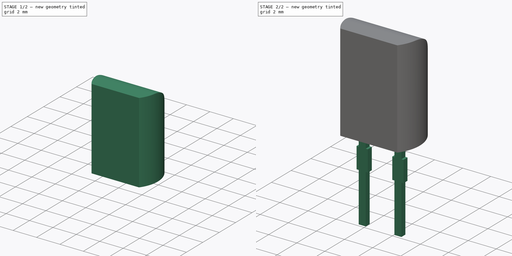
[diagram: build sequence overview — one tinted view per stage of 2, left to right]
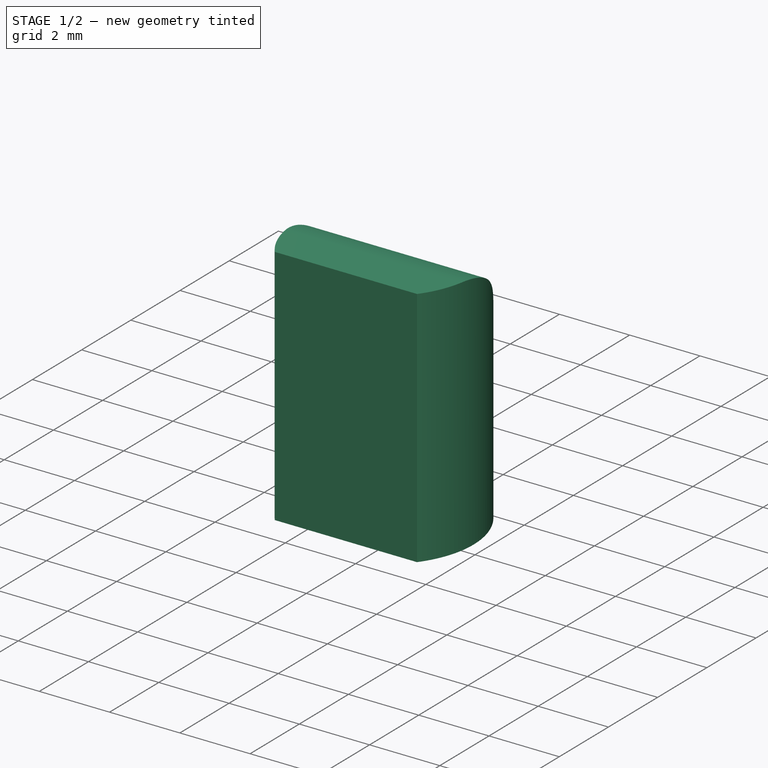
[diagram: stage 1 of 2 — iso view after this stage's code; geometry added in this stage tinted green]
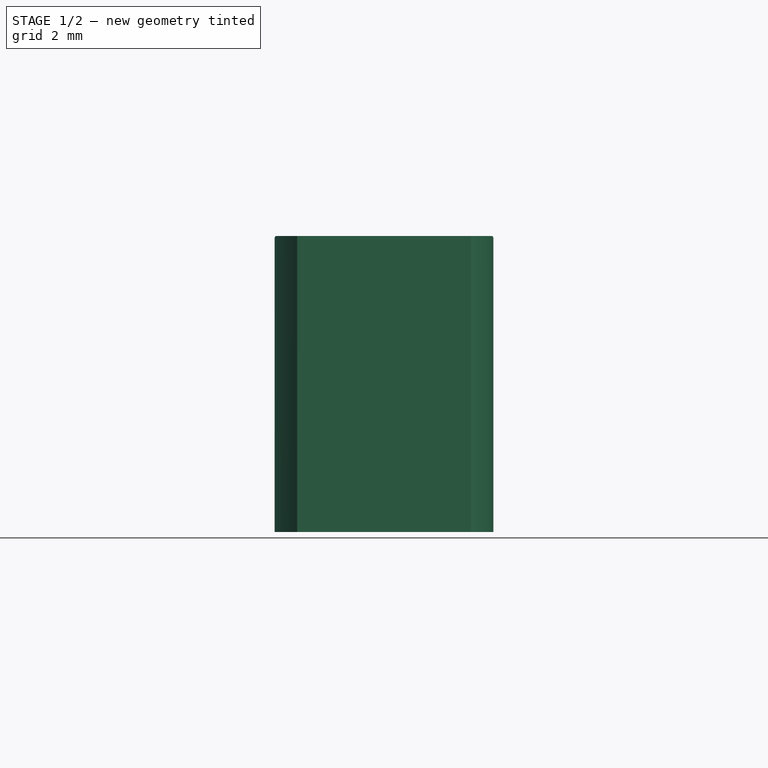
[diagram: stage 1 of 2 — front view after this stage's code; geometry added in this stage tinted green]
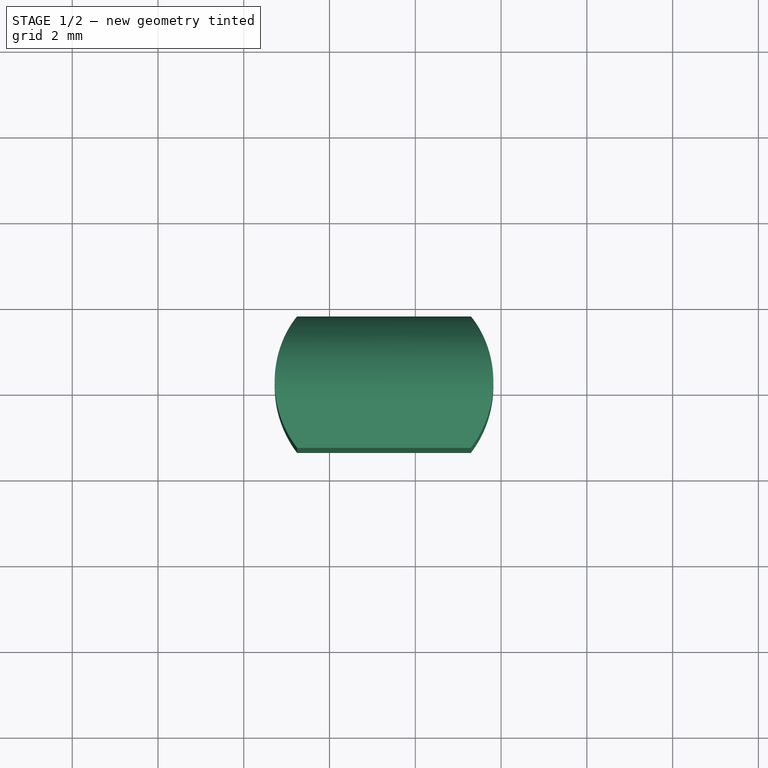
[diagram: stage 1 of 2 — top view after this stage's code; geometry added in this stage tinted green]
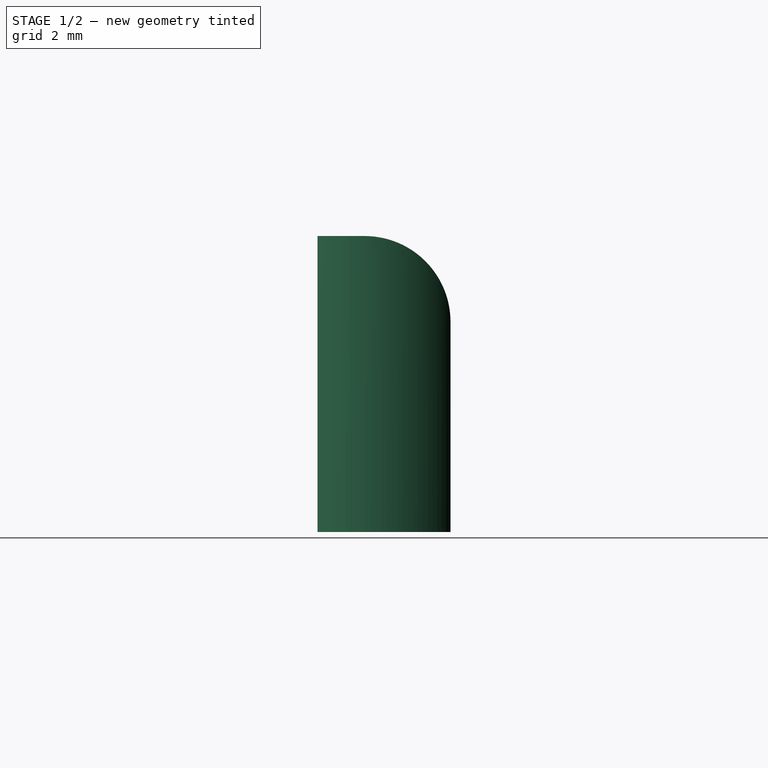
[diagram: stage 1 of 2 — right view after this stage's code; geometry added in this stage tinted green]
FCSTD DOCUMENT  (FreeCAD 0.16R6712 (Git))
Label: Osram_SFH225
License: All rights reserved
LicenseURL: http://en.wikipedia.org/wiki/All_rights_reserved
objects: Sketcher::SketchObject×2, PartDesign::Pad×2, PartDesign::Fillet×1, Part::MultiFuse×1
note: 8 computed .brp shape members not serialized (recipe doc carries the construction recipe); baked Part::Feature solids carry a one-line shape summary decoded from their .brp

FEATURE [Sketcher::SketchObject] Sketch
  Placement = pos=(0,0,3) rot=(0,0,1;0rad)
  expr: Constraints[3] = 5.1 / 2
  sketch-geometry (5):
    g0: LineSegment StartX=-0.754846 StartY=-1.35 StartZ=0 EndX=3.29485 EndY=-1.35 EndZ=0
    g1: ArcOfCircle CenterX=1.27 CenterY=0.2 CenterZ=0 NormalX=0 NormalY=0 NormalZ=1 Radius=2.55 StartAngle=5.62984 EndAngle=6.93653
    g2: LineSegment StartX=3.29485 StartY=1.75 StartZ=0 EndX=-0.754846 EndY=1.75 EndZ=0
    g3: ArcOfCircle CenterX=1.27 CenterY=0.2 CenterZ=0 NormalX=0 NormalY=0 NormalZ=1 Radius=2.55 StartAngle=2.48825 EndAngle=3.79493
    g4: LineSegment [constr] StartX=1.27 StartY=1.75 StartZ=0 EndX=1.27 EndY=-1.35 EndZ=0
  constraints (17):
    c: Horizontal(g0)
    c: Coincident(g3,g0)
    c: Coincident(g1,g0)
    c: Radius(g1) = 2.55
    c: DistanceX(g-1,g1) = 1.27
    c: Horizontal(g2)
    c: Equal(g1,g3)
    c: Coincident(g1,g2)
    c: Coincident(g3,g2)
    c: Coincident(g1,g3)
    c: DistanceY(g0,g1) = 3.1
    c: PointOnObject(g4,g2)
    c: PointOnObject(g4,g0)
    c: Vertical(g4)
    c: Symmetric(g0,g0,g4)
    c: DistanceY(g0,g-1) = 1.35
    c: Symmetric(g4,g4,g1)
FEATURE [PartDesign::Pad] Pad
  Length = 6.9
  Length2 = 100
  Placement = pos=(0,0,3) rot=(0,0,1;0rad)
  Sketch = -> Sketch
  Type = 0
FEATURE [PartDesign::Fillet] Fillet
  Base = -> Pad [Edge10]
  Placement = pos=(0,0,3) rot=(0,0,1;0rad)
  Radius = 2
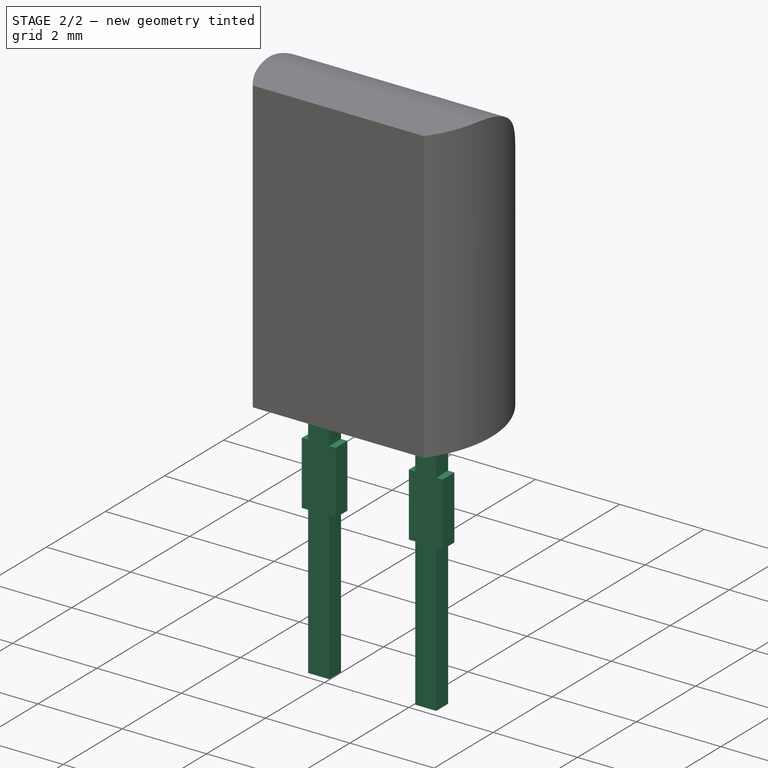
[diagram: stage 2 of 2 — iso view after this stage's code; geometry added in this stage tinted green]
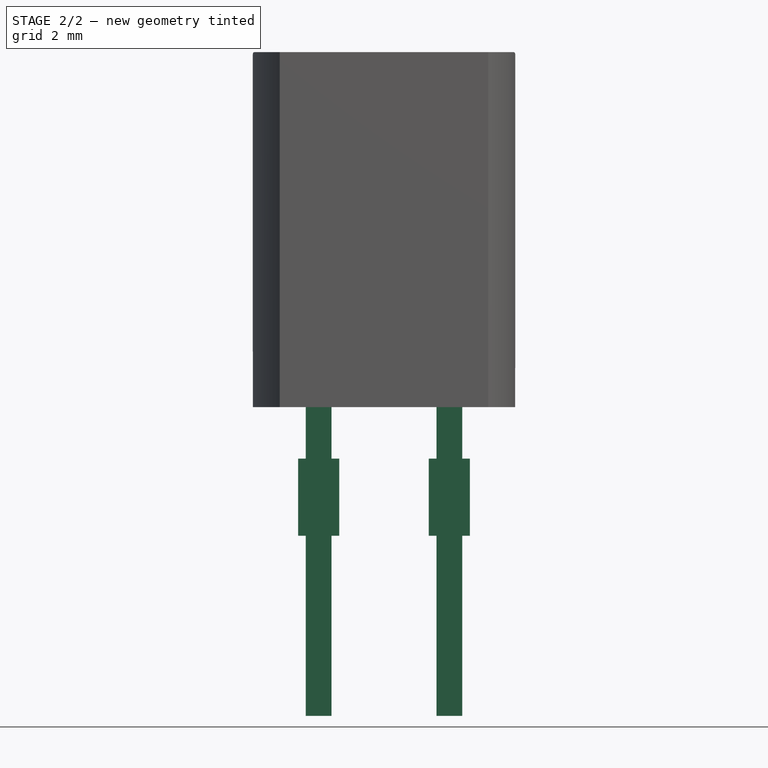
[diagram: stage 2 of 2 — front view after this stage's code; geometry added in this stage tinted green]
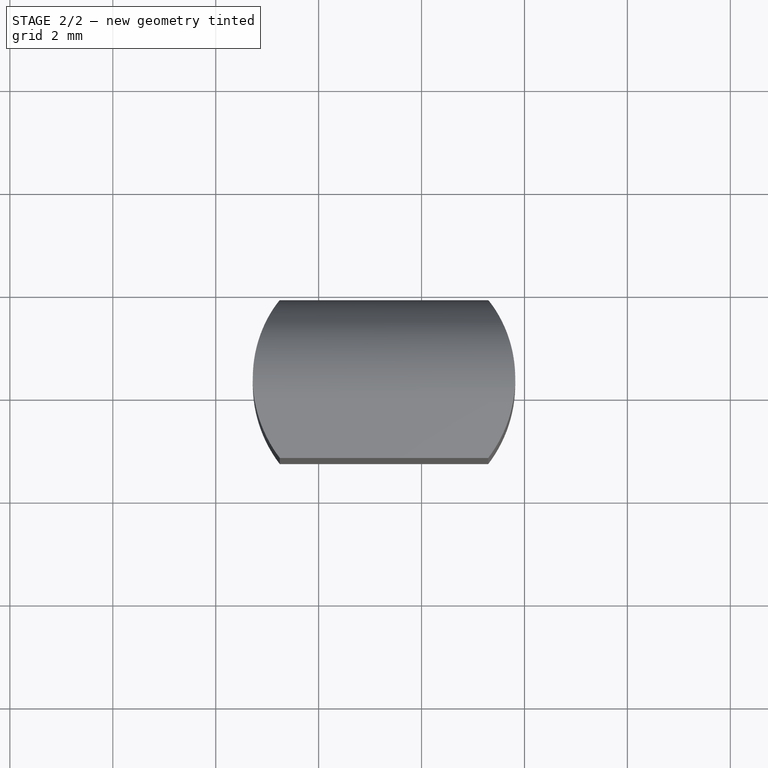
[diagram: stage 2 of 2 — top view after this stage's code; geometry added in this stage tinted green]
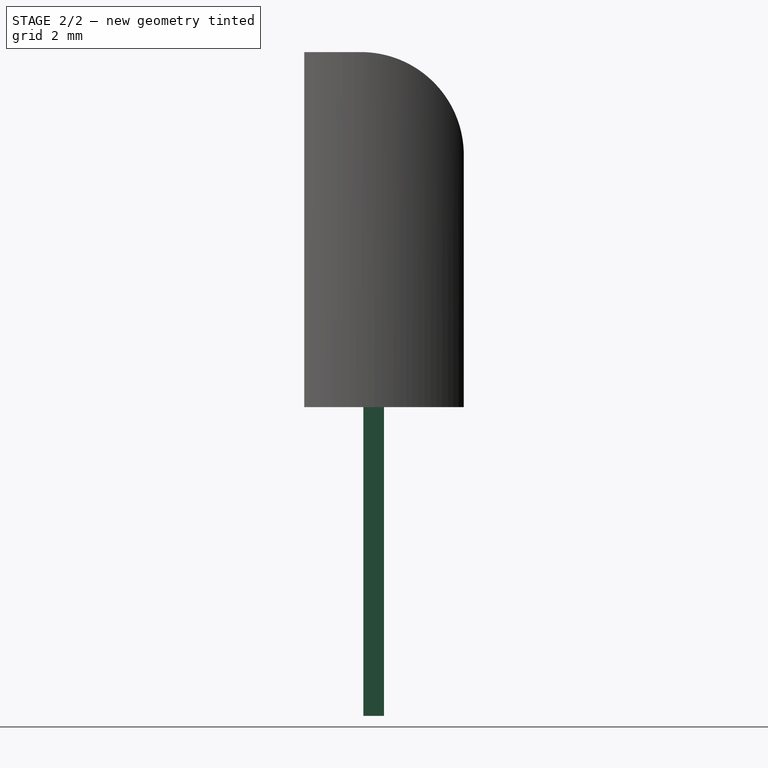
[diagram: stage 2 of 2 — right view after this stage's code; geometry added in this stage tinted green]
FEATURE [Sketcher::SketchObject] Sketch002
  Placement = pos=(0,0,0) rot=(1,0,0;1.5708rad)
  sketch-geometry (31):
    g0: LineSegment StartX=-0.25 StartY=3 StartZ=0 EndX=0.25 EndY=3 EndZ=0
    g1: LineSegment StartX=0.25 StartY=3 StartZ=0 EndX=0.25 EndY=2 EndZ=0
    g2: LineSegment [constr] StartX=0.25 StartY=2 StartZ=0 EndX=-0.25 EndY=2 EndZ=0
    g3: LineSegment StartX=-0.25 StartY=2 StartZ=0 EndX=-0.25 EndY=3 EndZ=0
    g4: LineSegment [constr] StartX=-0.25 StartY=0.5 StartZ=0 EndX=0.25 EndY=0.5 EndZ=0
    g5: LineSegment StartX=0.25 StartY=0.5 StartZ=0 EndX=0.25 EndY=-3 EndZ=0
    g6: LineSegment StartX=0.25 StartY=-3 StartZ=0 EndX=-0.25 EndY=-3 EndZ=0
    g7: LineSegment StartX=-0.25 StartY=-3 StartZ=0 EndX=-0.25 EndY=0.5 EndZ=0
    g8: LineSegment StartX=0.4 StartY=2 StartZ=0 EndX=0.4 EndY=0.5 EndZ=0
    g9: LineSegment StartX=-0.4 StartY=0.5 StartZ=0 EndX=-0.4 EndY=2 EndZ=0
    g10: LineSegment StartX=-0.4 StartY=2 StartZ=0 EndX=-0.25 EndY=2 EndZ=0
    g11: LineSegment StartX=0.25 StartY=2 StartZ=0 EndX=0.4 EndY=2 EndZ=0
    g12: LineSegment StartX=0.4 StartY=0.5 StartZ=0 EndX=0.25 EndY=0.5 EndZ=0
    g13: LineSegment StartX=-0.4 StartY=0.5 StartZ=0 EndX=-0.25 EndY=0.5 EndZ=0
    g14: GeomPoint [constr] X=0 Y=-3 Z=0
    g15: LineSegment StartX=2.29 StartY=3 StartZ=0 EndX=2.79 EndY=3 EndZ=0
    g16: LineSegment StartX=2.79 StartY=3 StartZ=0 EndX=2.79 EndY=2 EndZ=0
    g17: LineSegment [constr] StartX=2.79 StartY=2 StartZ=0 EndX=2.29 EndY=2 EndZ=0
    g18: LineSegment StartX=2.29 StartY=2 StartZ=0 EndX=2.29 EndY=3 EndZ=0
    g19: LineSegment [constr] StartX=2.29 StartY=0.5 StartZ=0 EndX=2.79 EndY=0.5 EndZ=0
    g20: LineSegment StartX=2.79 StartY=0.5 StartZ=0 EndX=2.79 EndY=-3 EndZ=0
    g21: LineSegment StartX=2.79 StartY=-3 StartZ=0 EndX=2.29 EndY=-3 EndZ=0
    g22: LineSegment StartX=2.29 StartY=-3 StartZ=0 EndX=2.29 EndY=0.5 EndZ=0
    g23: LineSegment StartX=2.94 StartY=2 StartZ=0 EndX=2.94 EndY=0.5 EndZ=0
    g24: LineSegment StartX=2.14 StartY=0.5 StartZ=0 EndX=2.14 EndY=2 EndZ=0
    g25: LineSegment StartX=2.14 StartY=2 StartZ=0 EndX=2.29 EndY=2 EndZ=0
    g26: LineSegment StartX=2.79 StartY=2 StartZ=0 EndX=2.94 EndY=2 EndZ=0
    g27: LineSegment StartX=2.94 StartY=0.5 StartZ=0 EndX=2.79 EndY=0.5 EndZ=0
    g28: LineSegment StartX=2.14 StartY=0.5 StartZ=0 EndX=2.29 EndY=0.5 EndZ=0
    g29: GeomPoint [constr] X=2.54 Y=-3 Z=0
    g30: LineSegment [constr] StartX=0.25 StartY=-3 StartZ=0 EndX=2.29 EndY=-3 EndZ=0
  constraints (87):
    c: Coincident(g0,g1)
    c: Coincident(g1,g2)
    c: Coincident(g2,g3)
    c: Coincident(g3,g0)
    c: Horizontal(g0)
    c: Horizontal(g2)
    c: Vertical(g1)
    c: Vertical(g3)
    c: Coincident(g4,g5)
    c: Coincident(g5,g6)
    c: Coincident(g6,g7)
    c: Coincident(g7,g4)
    c: Horizontal(g4)
    c: Horizontal(g6)
    c: Vertical(g5)
    c: Vertical(g7)
    c: Vertical(g8)
    c: Vertical(g9)
    c: Equal(g4,g2)
    c: Coincident(g10,g9)
    c: Coincident(g10,g2)
    c: Coincident(g11,g1)
    c: Coincident(g11,g8)
    c: Horizontal(g11)
    c: Coincident(g12,g8)
    c: Coincident(g12,g4)
    c: Coincident(g13,g9)
    c: Horizontal(g13)
    c: Horizontal(g10)
    c: Coincident(g4,g13)
    c: Horizontal(g12)
    c: Equal(g12,g13)
    c: Equal(g10,g11)
    c: Equal(g11,g12)
    c: PointOnObject(g14,g-2)
    c: Symmetric(g6,g6,g14)
    c: DistanceY(g14,g-1) = 3
    c: DistanceY(g-1,g0) = 3
    c: DistanceX(g6,g6) = 0.5
    c: DistanceX(g9,g8) = 0.8
    c: DistanceY(g8,g8) = 1.5
    c: DistanceY(g1,g1) = 1
    c: Coincident(g15,g16)
    c: Coincident(g16,g17)
    c: Coincident(g17,g18)
    c: Coincident(g18,g15)
    c: Horizontal(g15)
    c: Vertical(g16)
    c: Vertical(g18)
    c: Coincident(g19,g20)
    c: Coincident(g20,g21)
    c: Coincident(g21,g22)
    c: Coincident(g22,g19)
    c: Horizontal(g19)
    c: Horizontal(g21)
    c: Vertical(g20)
    c: Vertical(g22)
    c: Vertical(g23)
    c: Vertical(g24)
    c: Equal(g19,g17)
    c: Coincident(g25,g24)
    c: Coincident(g25,g17)
    c: Coincident(g26,g16)
    c: Coincident(g26,g23)
    c: Horizontal(g26)
    c: Coincident(g27,g23)
    c: Coincident(g27,g19)
    c: Coincident(g28,g24)
    c: Horizontal(g28)
    c: Horizontal(g25)
    c: Coincident(g19,g28)
    c: Horizontal(g27)
    c: Equal(g27,g28)
    c: Equal(g25,g26)
    c: Equal(g26,g27)
    c: Symmetric(g21,g21,g29)
    c: Equal(g6,g21) = 0.5
    c: DistanceX(g24,g23) = 0.8
    c: Equal(g8,g23) = 1.5
    c: Equal(g1,g16) = 1
    c: DistanceX(g14,g29) = 2.54
    c: Equal(g18,g1)
    c: Equal(g22,g7)
    c: Equal(g24,g9)
    c: Coincident(g30,g5)
    c: Coincident(g30,g21)
    c: Horizontal(g30)
FEATURE [PartDesign::Pad] Pad001
  Length = 0.4
  Length2 = 100
  Midplane = true
  Placement = pos=(0,0,0) rot=(1,0,0;1.5708rad)
  Sketch = -> Sketch002
  Type = 0
FEATURE [Part::MultiFuse] Fillet_mp_cp  label="Osram_SFH225"
  Shapes = -> [Fillet,Pad001]
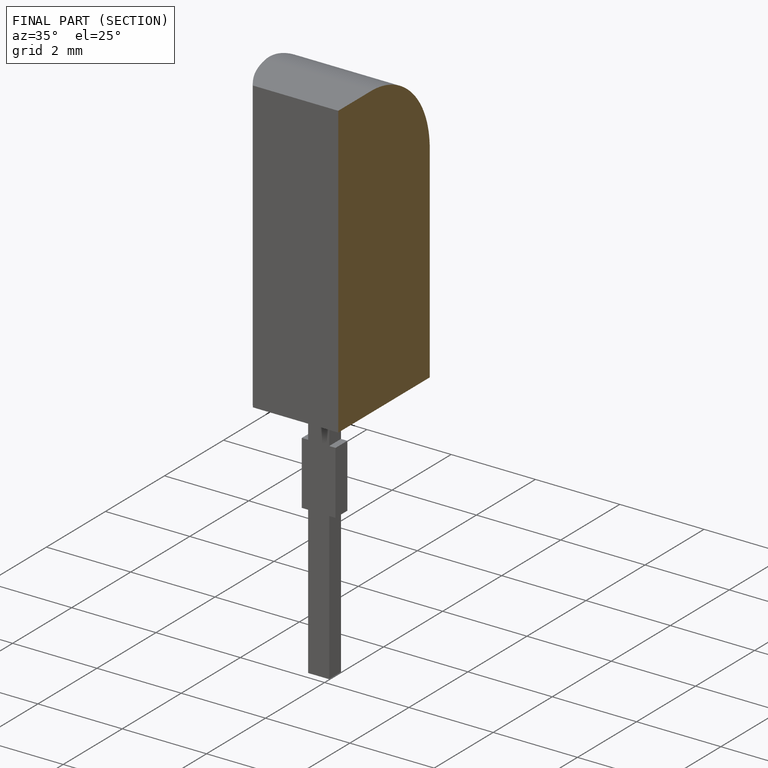
[diagram: finished part — half-section view (interior)]
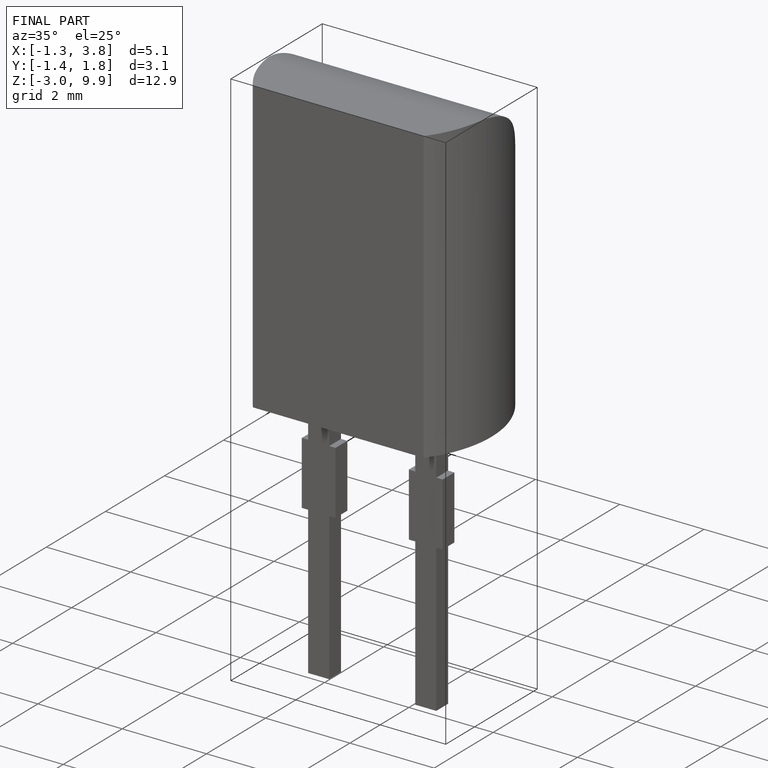
[diagram: finished part — iso view with bounding-box wireframe]
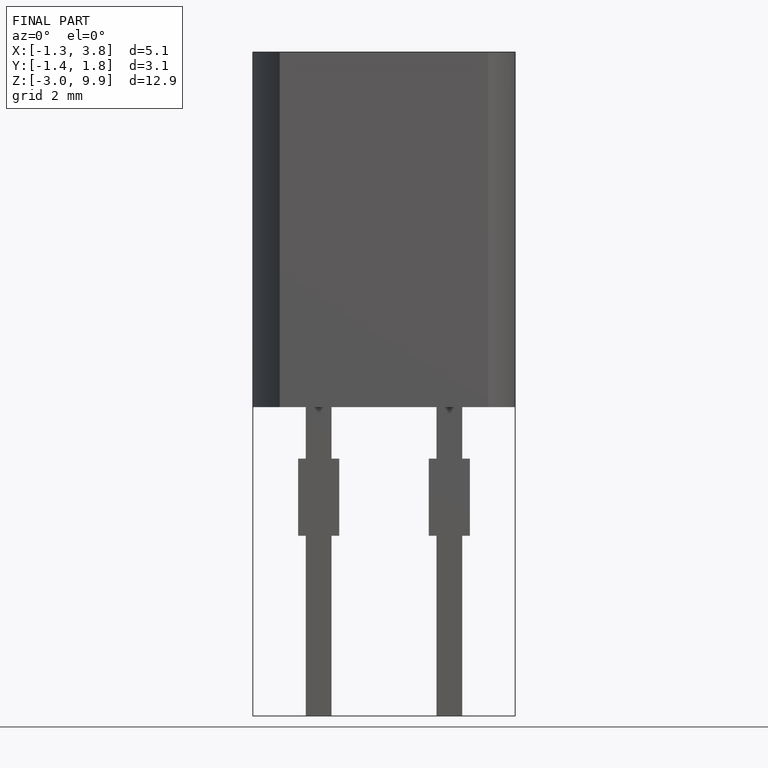
[diagram: finished part — front view with bounding-box wireframe]
